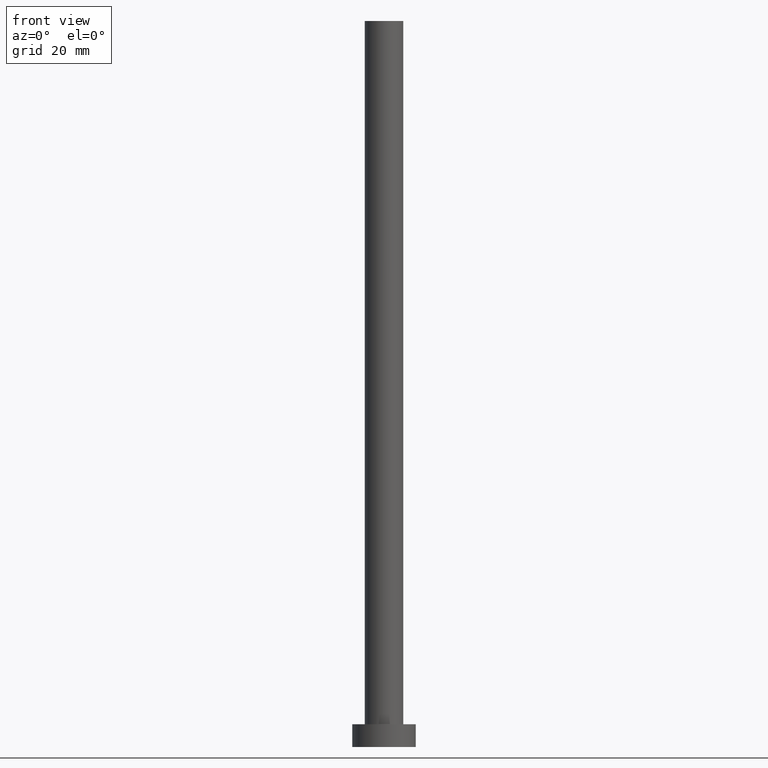
[diagram: clean part render]
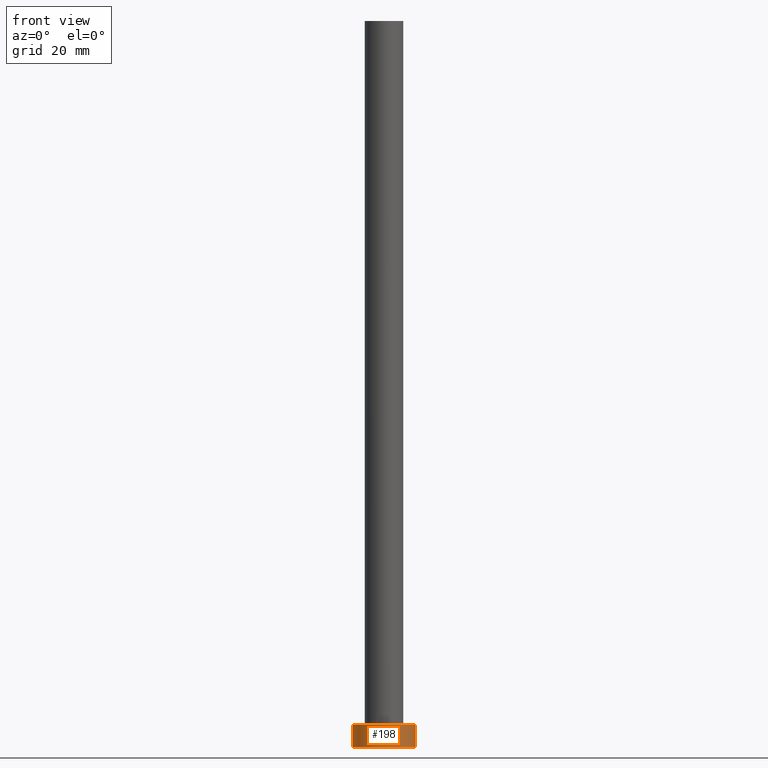
[diagram: same view with one face highlighted and labeled with its STEP entity id]
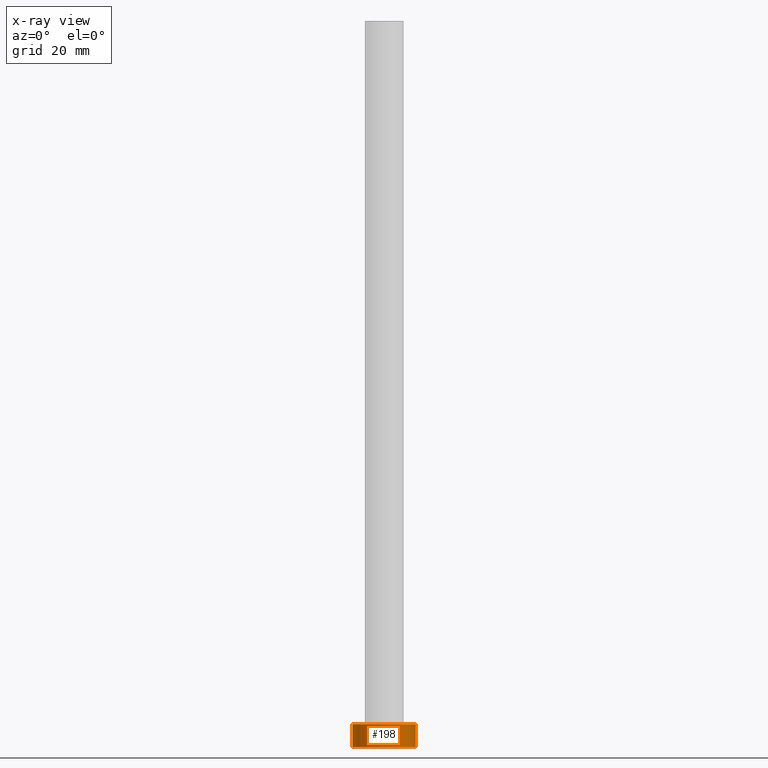
[diagram: x-ray of the same camera — body ghosted, the highlighted face saturated]
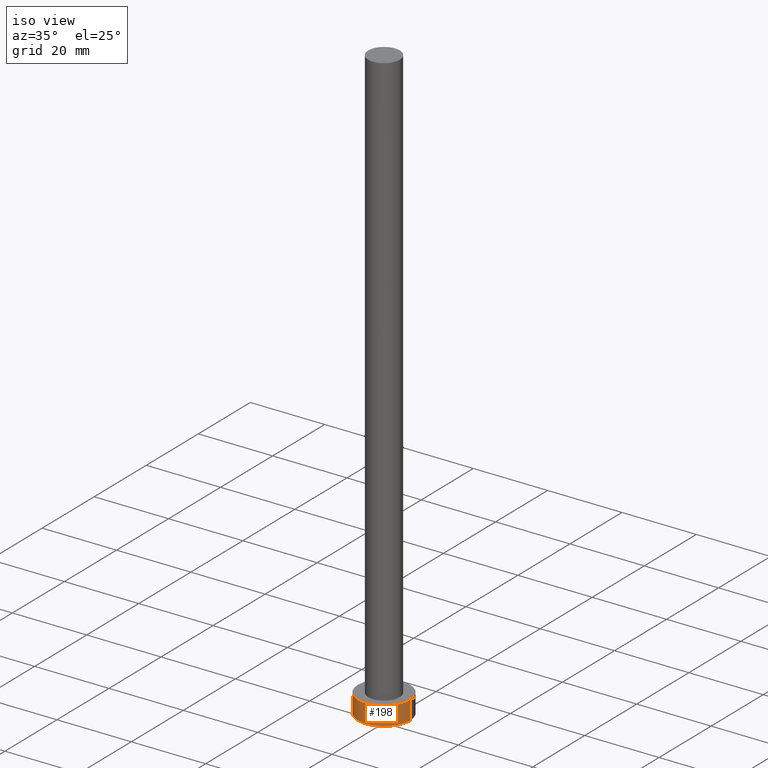
[diagram: same view with one face highlighted and labeled with its STEP entity id]
A machine part, front view. The second image highlights one B-rep face of the part: STEP entity #198.
The next image is the same camera in x-ray: the body ghosted, the highlighted face saturated — about 0% of this face is hidden behind the body in this view.
A second angle (iso view) of the same face is appended — the face is thin or edge-on in the first view.
In plain terms, the highlighted cylindrical surface (edge-blend (fillet) strip) has radius 7 mm, axis along (-0, -0, -1).
Its self-contained STEP definition (entity closure, byte-faithful):
#6 = ORIENTED_EDGE ( 'NONE', *, *, #226, .T. ) ;
#17 = AXIS2_PLACEMENT_3D ( 'NONE', #147, #197, #34 ) ;
#18 = CARTESIAN_POINT ( 'NONE',  ( -7.000000000000000000, 0.000000000000000000, 5.000000000000000000 ) ) ;
#20 = EDGE_LOOP ( 'NONE', ( #22, #62, #79, #6 ) ) ;
#22 = ORIENTED_EDGE ( 'NONE', *, *, #71, .F. ) ;
#34 = DIRECTION ( 'NONE',  ( -1.000000000000000000, 0.000000000000000000, 0.000000000000000000 ) ) ;
#52 = LINE ( 'NONE', #121, #115 ) ;
#62 = ORIENTED_EDGE ( 'NONE', *, *, #85, .F. ) ;
#63 = CARTESIAN_POINT ( 'NONE',  ( 7.000000000000000000, 8.572527594031473190E-16, 5.000000000000000000 ) ) ;
#71 = EDGE_CURVE ( 'NONE', #120, #196, #155, .T. ) ;
#72 = CIRCLE ( 'NONE', #253, 7.000000000000000000 ) ;
#79 = ORIENTED_EDGE ( 'NONE', *, *, #105, .T. ) ;
#85 = EDGE_CURVE ( 'NONE', #101, #120, #153, .T. ) ;
#90 = DIRECTION ( 'NONE',  ( 0.000000000000000000, 0.000000000000000000, 1.000000000000000000 ) ) ;
#96 = AXIS2_PLACEMENT_3D ( 'NONE', #126, #90, #240 ) ;
#101 = VERTEX_POINT ( 'NONE', #18 ) ;
#105 = EDGE_CURVE ( 'NONE', #101, #211, #52, .T. ) ;
#108 = CARTESIAN_POINT ( 'NONE',  ( 7.000000000000000000, 8.572527594031473190E-16, 5.000000000000000000 ) ) ;
#109 = VECTOR ( 'NONE', #159, 1000.000000000000000 ) ;
#115 = VECTOR ( 'NONE', #178, 1000.000000000000000 ) ;
#120 = VERTEX_POINT ( 'NONE', #63 ) ;
#121 = CARTESIAN_POINT ( 'NONE',  ( -7.000000000000000000, 0.000000000000000000, 5.000000000000000000 ) ) ;
#126 = CARTESIAN_POINT ( 'NONE',  ( 0.000000000000000000, 0.000000000000000000, 5.000000000000000000 ) ) ;
#142 = DIRECTION ( 'NONE',  ( 0.000000000000000000, 0.000000000000000000, 1.000000000000000000 ) ) ;
#147 = CARTESIAN_POINT ( 'NONE',  ( 0.000000000000000000, 0.000000000000000000, 5.000000000000000000 ) ) ;
#153 = CIRCLE ( 'NONE', #96, 7.000000000000000000 ) ;
#155 = LINE ( 'NONE', #108, #109 ) ;
#159 = DIRECTION ( 'NONE',  ( -0.000000000000000000, -0.000000000000000000, -1.000000000000000000 ) ) ;
#161 = CARTESIAN_POINT ( 'NONE',  ( -7.000000000000000000, 0.000000000000000000, 0.000000000000000000 ) ) ;
#178 = DIRECTION ( 'NONE',  ( -0.000000000000000000, -0.000000000000000000, -1.000000000000000000 ) ) ;
#196 = VERTEX_POINT ( 'NONE', #215 ) ;
#197 = DIRECTION ( 'NONE',  ( -0.000000000000000000, -0.000000000000000000, -1.000000000000000000 ) ) ;
#198 = ADVANCED_FACE ( 'NONE', ( #244 ), #250, .T. ) ;
#200 = CARTESIAN_POINT ( 'NONE',  ( 0.000000000000000000, 0.000000000000000000, 0.000000000000000000 ) ) ;
#211 = VERTEX_POINT ( 'NONE', #161 ) ;
#215 = CARTESIAN_POINT ( 'NONE',  ( 7.000000000000000000, 8.572527594031473190E-16, 0.000000000000000000 ) ) ;
#223 = DIRECTION ( 'NONE',  ( 1.000000000000000000, 0.000000000000000000, 0.000000000000000000 ) ) ;
#226 = EDGE_CURVE ( 'NONE', #211, #196, #72, .T. ) ;
#240 = DIRECTION ( 'NONE',  ( 1.000000000000000000, 0.000000000000000000, 0.000000000000000000 ) ) ;
#244 = FACE_OUTER_BOUND ( 'NONE', #20, .T. ) ;
#250 = CYLINDRICAL_SURFACE ( 'NONE', #17, 7.000000000000000000 ) ;
#253 = AXIS2_PLACEMENT_3D ( 'NONE', #200, #142, #223 ) ;